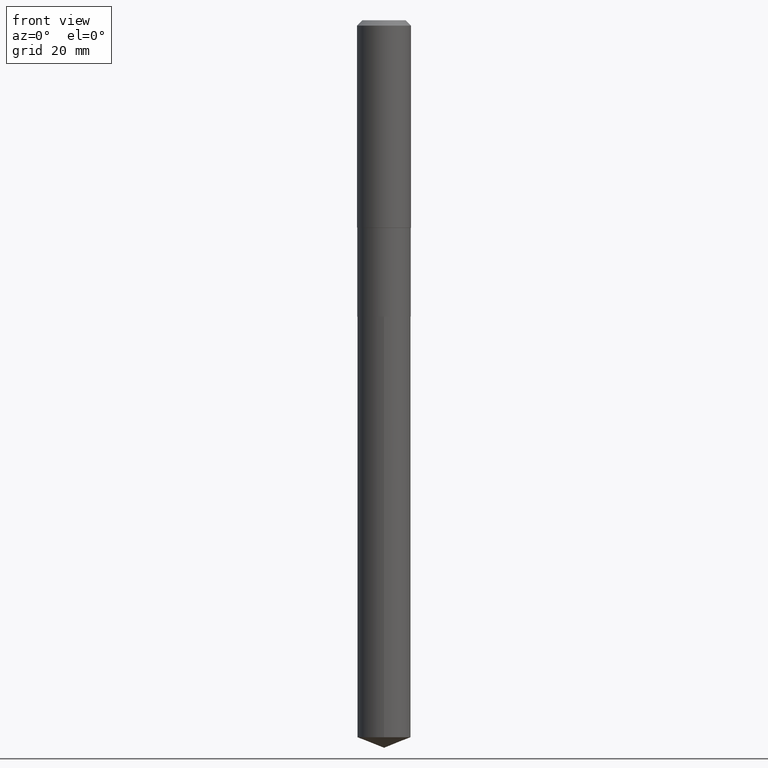
[diagram: clean part render]
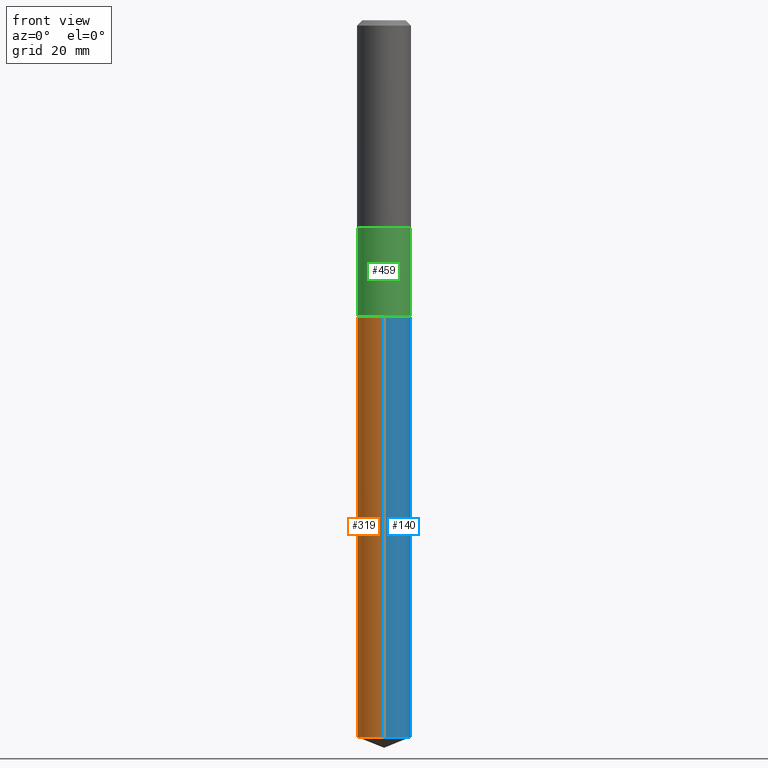
[diagram: same view with three faces highlighted in distinct colors, each labeled with its STEP entity id]
A machine part, front view with three faces highlighted in distinct colors.
Their STEP definitions:

[orange] entity #319 — the highlighted cylindrical surface (edge-blend (fillet) strip) has radius 5.9538 mm, axis along (-0, 0, 1).
#24 = ORIENTED_EDGE ( 'NONE', *, *, #247, .T. ) ;
#27 = CIRCLE ( 'NONE', #142, 0.2343999999999999972 ) ;
#50 = ORIENTED_EDGE ( 'NONE', *, *, #344, .T. ) ;
#54 = AXIS2_PLACEMENT_3D ( 'NONE', #363, #398, #83 ) ;
#72 = DIRECTION ( 'NONE',  ( -6.982962677686265922E-15, -1.000000000000000000, 2.330928322239132474E-15 ) ) ;
#78 = EDGE_CURVE ( 'NONE', #483, #284, #225, .T. ) ;
#83 = DIRECTION ( 'NONE',  ( -6.982962677686265922E-15, -1.000000000000000000, 2.330928322239132474E-15 ) ) ;
#94 = CARTESIAN_POINT ( 'NONE',  ( 1.665512172621738122E-15, 0.2343999999999909212, -2.598400000000001597 ) ) ;
#98 = CARTESIAN_POINT ( 'NONE',  ( -1.636806451649507083E-15, -0.2344000000000218964, -6.285567384515857725 ) ) ;
#101 = DIRECTION ( 'NONE',  ( -6.982962677686265922E-15, -1.000000000000000000, 4.661856644478264948E-15 ) ) ;
#110 = DIRECTION ( 'NONE',  ( -2.445374075010293314E-29, 3.491616999277284957E-15, 1.000000000000000000 ) ) ;
#123 = VERTEX_POINT ( 'NONE', #98 ) ;
#142 = AXIS2_PLACEMENT_3D ( 'NONE', #266, #190, #101 ) ;
#170 = VERTEX_POINT ( 'NONE', #179 ) ;
#179 = CARTESIAN_POINT ( 'NONE',  ( -1.636806451649597210E-15, -0.2344000000000090733, -2.598400000000000265 ) ) ;
#183 = AXIS2_PLACEMENT_3D ( 'NONE', #340, #110, #72 ) ;
#190 = DIRECTION ( 'NONE',  ( -2.445374075010293314E-29, 3.491616999277284957E-15, 1.000000000000000000 ) ) ;
#193 = CYLINDRICAL_SURFACE ( 'NONE', #183, 0.2343999999999999972 ) ;
#206 = VECTOR ( 'NONE', #375, 39.37007874015748143 ) ;
#225 = LINE ( 'NONE', #94, #447 ) ;
#228 = ORIENTED_EDGE ( 'NONE', *, *, #465, .F. ) ;
#235 = CARTESIAN_POINT ( 'NONE',  ( 1.665512172621829236E-15, 0.2343999999999909212, -2.598400000000001597 ) ) ;
#247 = EDGE_CURVE ( 'NONE', #483, #123, #27, .T. ) ;
#266 = CARTESIAN_POINT ( 'NONE',  ( 1.537080967831005091E-28, -2.194644142980637157E-14, -6.285567384515859501 ) ) ;
#283 = CARTESIAN_POINT ( 'NONE',  ( 1.665512172621827855E-15, 0.2343999999999780426, -6.285567384515860390 ) ) ;
#284 = VERTEX_POINT ( 'NONE', #235 ) ;
#319 = ADVANCED_FACE ( 'NONE', ( #416 ), #193, .T. ) ;
#331 = DIRECTION ( 'NONE',  ( -2.445374075010293314E-29, 3.491616999277284562E-15, 1.000000000000000000 ) ) ;
#340 = CARTESIAN_POINT ( 'NONE',  ( 6.354306145991460877E-29, -9.072265110850034200E-15, -2.598400000000000709 ) ) ;
#344 = EDGE_CURVE ( 'NONE', #123, #170, #490, .T. ) ;
#363 = CARTESIAN_POINT ( 'NONE',  ( 6.354306145991460877E-29, -9.072265110850034200E-15, -2.598400000000000709 ) ) ;
#375 = DIRECTION ( 'NONE',  ( -2.445374075010293314E-29, 3.491616999277284562E-15, 1.000000000000000000 ) ) ;
#388 = ORIENTED_EDGE ( 'NONE', *, *, #78, .F. ) ;
#398 = DIRECTION ( 'NONE',  ( -2.445374075010293314E-29, 3.491616999277284957E-15, 1.000000000000000000 ) ) ;
#416 = FACE_OUTER_BOUND ( 'NONE', #480, .T. ) ;
#424 = CIRCLE ( 'NONE', #54, 0.2343999999999999972 ) ;
#447 = VECTOR ( 'NONE', #331, 39.37007874015748143 ) ;
#451 = CARTESIAN_POINT ( 'NONE',  ( -1.636806451649597210E-15, -0.2344000000000090733, -2.598400000000000265 ) ) ;
#465 = EDGE_CURVE ( 'NONE', #284, #170, #424, .T. ) ;
#480 = EDGE_LOOP ( 'NONE', ( #388, #24, #50, #228 ) ) ;
#483 = VERTEX_POINT ( 'NONE', #283 ) ;
#490 = LINE ( 'NONE', #451, #206 ) ;

[blue] entity #140 — the highlighted cylindrical surface (edge-blend (fillet) strip) has radius 5.9538 mm, axis along (-0, 0, 1).
#40 = CARTESIAN_POINT ( 'NONE',  ( 1.537080967831005091E-28, -2.194644142980637157E-14, -6.285567384515859501 ) ) ;
#55 = DIRECTION ( 'NONE',  ( -2.445374075010293314E-29, 3.491616999277284957E-15, 1.000000000000000000 ) ) ;
#57 = CYLINDRICAL_SURFACE ( 'NONE', #125, 0.2343999999999999972 ) ;
#71 = CIRCLE ( 'NONE', #352, 0.2343999999999999972 ) ;
#78 = EDGE_CURVE ( 'NONE', #483, #284, #225, .T. ) ;
#94 = CARTESIAN_POINT ( 'NONE',  ( 1.665512172621738122E-15, 0.2343999999999909212, -2.598400000000001597 ) ) ;
#98 = CARTESIAN_POINT ( 'NONE',  ( -1.636806451649507083E-15, -0.2344000000000218964, -6.285567384515857725 ) ) ;
#113 = EDGE_LOOP ( 'NONE', ( #143, #392, #212, #205 ) ) ;
#123 = VERTEX_POINT ( 'NONE', #98 ) ;
#125 = AXIS2_PLACEMENT_3D ( 'NONE', #219, #335, #252 ) ;
#127 = CARTESIAN_POINT ( 'NONE',  ( 6.354306145991460877E-29, -9.072265110850034200E-15, -2.598400000000000709 ) ) ;
#140 = ADVANCED_FACE ( 'NONE', ( #288 ), #57, .T. ) ;
#143 = ORIENTED_EDGE ( 'NONE', *, *, #304, .T. ) ;
#148 = EDGE_CURVE ( 'NONE', #170, #284, #346, .T. ) ;
#170 = VERTEX_POINT ( 'NONE', #179 ) ;
#176 = DIRECTION ( 'NONE',  ( -6.982962677686265922E-15, -1.000000000000000000, 2.330928322239132474E-15 ) ) ;
#179 = CARTESIAN_POINT ( 'NONE',  ( -1.636806451649597210E-15, -0.2344000000000090733, -2.598400000000000265 ) ) ;
#205 = ORIENTED_EDGE ( 'NONE', *, *, #344, .F. ) ;
#206 = VECTOR ( 'NONE', #375, 39.37007874015748143 ) ;
#212 = ORIENTED_EDGE ( 'NONE', *, *, #148, .F. ) ;
#219 = CARTESIAN_POINT ( 'NONE',  ( 6.354306145991460877E-29, -9.072265110850034200E-15, -2.598400000000000709 ) ) ;
#225 = LINE ( 'NONE', #94, #447 ) ;
#235 = CARTESIAN_POINT ( 'NONE',  ( 1.665512172621829236E-15, 0.2343999999999909212, -2.598400000000001597 ) ) ;
#252 = DIRECTION ( 'NONE',  ( -6.982962677686265922E-15, -1.000000000000000000, 2.330928322239132474E-15 ) ) ;
#283 = CARTESIAN_POINT ( 'NONE',  ( 1.665512172621827855E-15, 0.2343999999999780426, -6.285567384515860390 ) ) ;
#284 = VERTEX_POINT ( 'NONE', #235 ) ;
#288 = FACE_OUTER_BOUND ( 'NONE', #113, .T. ) ;
#304 = EDGE_CURVE ( 'NONE', #123, #483, #71, .T. ) ;
#331 = DIRECTION ( 'NONE',  ( -2.445374075010293314E-29, 3.491616999277284562E-15, 1.000000000000000000 ) ) ;
#335 = DIRECTION ( 'NONE',  ( -2.445374075010293314E-29, 3.491616999277284957E-15, 1.000000000000000000 ) ) ;
#344 = EDGE_CURVE ( 'NONE', #123, #170, #490, .T. ) ;
#346 = CIRCLE ( 'NONE', #417, 0.2343999999999999972 ) ;
#352 = AXIS2_PLACEMENT_3D ( 'NONE', #40, #488, #453 ) ;
#375 = DIRECTION ( 'NONE',  ( -2.445374075010293314E-29, 3.491616999277284562E-15, 1.000000000000000000 ) ) ;
#392 = ORIENTED_EDGE ( 'NONE', *, *, #78, .T. ) ;
#417 = AXIS2_PLACEMENT_3D ( 'NONE', #127, #55, #176 ) ;
#447 = VECTOR ( 'NONE', #331, 39.37007874015748143 ) ;
#451 = CARTESIAN_POINT ( 'NONE',  ( -1.636806451649597210E-15, -0.2344000000000090733, -2.598400000000000265 ) ) ;
#453 = DIRECTION ( 'NONE',  ( -6.982962677686265922E-15, -1.000000000000000000, 4.661856644478264948E-15 ) ) ;
#483 = VERTEX_POINT ( 'NONE', #283 ) ;
#488 = DIRECTION ( 'NONE',  ( -2.445374075010293314E-29, 3.491616999277284957E-15, 1.000000000000000000 ) ) ;
#490 = LINE ( 'NONE', #451, #206 ) ;

[green] entity #459 — the highlighted cylindrical surface (edge-blend (fillet) strip) has radius 5.9538 mm, axis along (-0, 0, 1).
#16 = ORIENTED_EDGE ( 'NONE', *, *, #44, .T. ) ;
#29 = DIRECTION ( 'NONE',  ( 1.000000000000000000, -6.982962677686265133E-15, 0.000000000000000000 ) ) ;
#44 = EDGE_CURVE ( 'NONE', #178, #246, #69, .T. ) ;
#49 = DIRECTION ( 'NONE',  ( -2.445468806185136597E-29, 3.491481338843145583E-15, 1.000000000000000000 ) ) ;
#52 = EDGE_LOOP ( 'NONE', ( #295, #16, #116, #323 ) ) ;
#69 = CIRCLE ( 'NONE', #95, 0.2344000000000000250 ) ;
#73 = EDGE_CURVE ( 'NONE', #246, #326, #90, .T. ) ;
#90 = LINE ( 'NONE', #473, #223 ) ;
#95 = AXIS2_PLACEMENT_3D ( 'NONE', #244, #49, #362 ) ;
#104 = VECTOR ( 'NONE', #231, 39.37007874015748143 ) ;
#112 = FACE_OUTER_BOUND ( 'NONE', #52, .T. ) ;
#116 = ORIENTED_EDGE ( 'NONE', *, *, #73, .T. ) ;
#118 = CARTESIAN_POINT ( 'NONE',  ( 0.000000000000000000, 0.000000000000000000, 0.000000000000000000 ) ) ;
#156 = CARTESIAN_POINT ( 'NONE',  ( 0.2344000000000000250, -1.070732582183027361E-14, -2.597900000000000542 ) ) ;
#171 = DIRECTION ( 'NONE',  ( 1.000000000000000000, -6.982962677686266711E-15, 4.876176775795935793E-29 ) ) ;
#178 = VERTEX_POINT ( 'NONE', #327 ) ;
#194 = EDGE_CURVE ( 'NONE', #436, #326, #204, .T. ) ;
#197 = CARTESIAN_POINT ( 'NONE',  ( -0.2343999999999999695, 1.665512172621674619E-15, -1.152998385155749684E-29 ) ) ;
#204 = CIRCLE ( 'NONE', #297, 0.2343999999999998862 ) ;
#215 = AXIS2_PLACEMENT_3D ( 'NONE', #118, #429, #171 ) ;
#223 = VECTOR ( 'NONE', #365, 39.37007874015748143 ) ;
#229 = LINE ( 'NONE', #197, #104 ) ;
#231 = DIRECTION ( 'NONE',  ( -2.445468806185136877E-29, 3.491481338843145188E-15, 1.000000000000000000 ) ) ;
#236 = EDGE_CURVE ( 'NONE', #178, #436, #229, .T. ) ;
#244 = CARTESIAN_POINT ( 'NONE',  ( 6.353083411588368076E-29, -9.070519370180611907E-15, -2.597900000000000542 ) ) ;
#246 = VERTEX_POINT ( 'NONE', #156 ) ;
#271 = CYLINDRICAL_SURFACE ( 'NONE', #215, 0.2343999999999999695 ) ;
#295 = ORIENTED_EDGE ( 'NONE', *, *, #236, .F. ) ;
#297 = AXIS2_PLACEMENT_3D ( 'NONE', #406, #370, #29 ) ;
#323 = ORIENTED_EDGE ( 'NONE', *, *, #194, .F. ) ;
#326 = VERTEX_POINT ( 'NONE', #419 ) ;
#327 = CARTESIAN_POINT ( 'NONE',  ( -0.2344000000000000250, -6.045948086414241343E-15, -2.597900000000000542 ) ) ;
#362 = DIRECTION ( 'NONE',  ( 1.000000000000000000, -6.982962677686269077E-15, 0.000000000000000000 ) ) ;
#365 = DIRECTION ( 'NONE',  ( -2.445468806185136877E-29, 3.491481338843145188E-15, 1.000000000000000000 ) ) ;
#370 = DIRECTION ( 'NONE',  ( -2.445468806185136597E-29, 3.491481338843145583E-15, 1.000000000000000000 ) ) ;
#394 = CARTESIAN_POINT ( 'NONE',  ( -0.2343999999999998862, -6.045948086414241343E-15, -1.819400000000000350 ) ) ;
#406 = CARTESIAN_POINT ( 'NONE',  ( 4.449285945973238276E-29, -6.352401147891219622E-15, -1.819400000000000350 ) ) ;
#419 = CARTESIAN_POINT ( 'NONE',  ( 0.2343999999999998862, -7.989207599540879743E-15, -1.819400000000000350 ) ) ;
#429 = DIRECTION ( 'NONE',  ( -2.445468806185136597E-29, 3.491481338843145583E-15, 1.000000000000000000 ) ) ;
#436 = VERTEX_POINT ( 'NONE', #394 ) ;
#459 = ADVANCED_FACE ( 'NONE', ( #112 ), #271, .T. ) ;
#473 = CARTESIAN_POINT ( 'NONE',  ( 0.2343999999999999695, -1.636806451649660713E-15, 1.142975836246567155E-29 ) ) ;